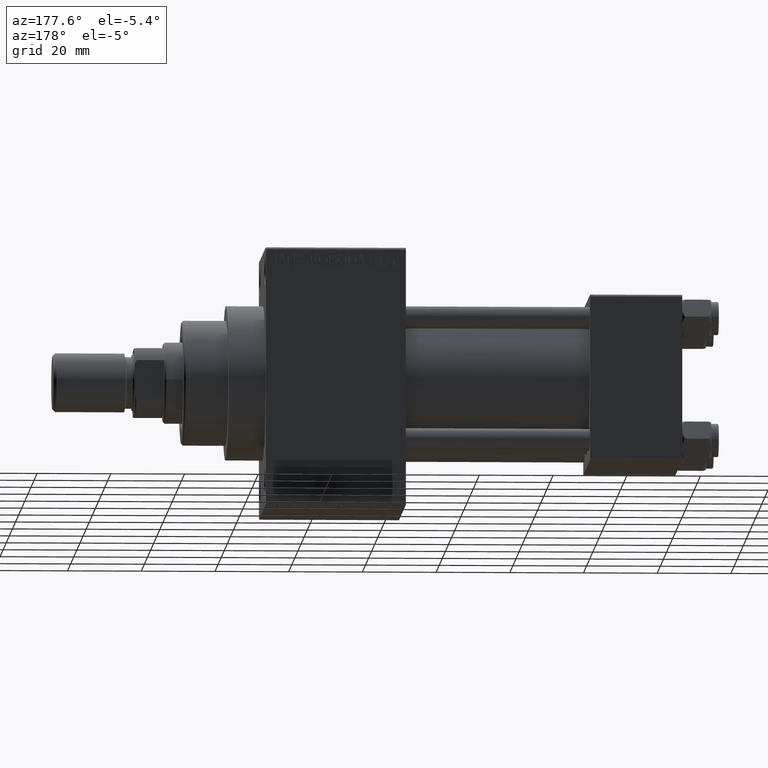
[diagram: clean part render]
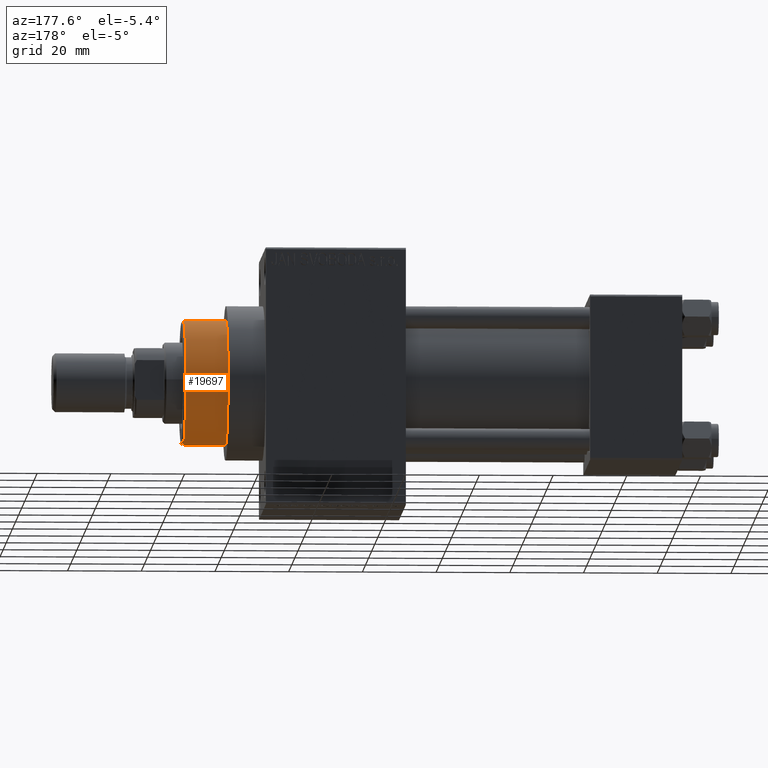
[diagram: same view with one face highlighted and labeled with its STEP entity id]
A machine part, auxiliary view. The second image highlights one B-rep face of the part: STEP entity #19697.
In plain terms, the highlighted cylindrical surface (partial cylindrical patch) has radius 17 mm, axis along (-1, 0, 0).
Its self-contained STEP definition (entity closure, byte-faithful):
#3134 = ORIENTED_EDGE ( 'NONE', *, *, #34963, .F. ) ;
#8482 = CARTESIAN_POINT ( 'NONE',  ( 0.000000000000000000, 0.000000000000000000, 43.25999999999999801 ) ) ;
#9506 = CARTESIAN_POINT ( 'NONE',  ( 17.00000000000000000, 2.081899558550500280E-15, 43.25999999999999801 ) ) ;
#10587 = CYLINDRICAL_SURFACE ( 'NONE', #28420, 17.00000000000000000 ) ;
#13028 = EDGE_CURVE ( 'NONE', #17684, #31371, #18960, .T. ) ;
#14896 = DIRECTION ( 'NONE',  ( 1.000000000000000000, 0.000000000000000000, 0.000000000000000000 ) ) ;
#15227 = CARTESIAN_POINT ( 'NONE',  ( -17.00000000000000000, 0.000000000000000000, 54.76000000000001222 ) ) ;
#17261 = ORIENTED_EDGE ( 'NONE', *, *, #44093, .T. ) ;
#17684 = VERTEX_POINT ( 'NONE', #15227 ) ;
#18055 = CARTESIAN_POINT ( 'NONE',  ( 0.000000000000000000, 0.000000000000000000, 54.76000000000001222 ) ) ;
#18513 = AXIS2_PLACEMENT_3D ( 'NONE', #8482, #29702, #19120 ) ;
#18960 = LINE ( 'NONE', #26642, #44361 ) ;
#19120 = DIRECTION ( 'NONE',  ( 1.000000000000000000, 0.000000000000000000, 0.000000000000000000 ) ) ;
#19697 = ADVANCED_FACE ( 'NONE', ( #42406 ), #10587, .T. ) ;
#22099 = EDGE_CURVE ( 'NONE', #31371, #31867, #37728, .T. ) ;
#22223 = VERTEX_POINT ( 'NONE', #41731 ) ;
#24258 = CIRCLE ( 'NONE', #36579, 17.00000000000000000 ) ;
#24333 = DIRECTION ( 'NONE',  ( -1.000000000000000000, 0.000000000000000000, 0.000000000000000000 ) ) ;
#24844 = ORIENTED_EDGE ( 'NONE', *, *, #22099, .T. ) ;
#25288 = CARTESIAN_POINT ( 'NONE',  ( 0.000000000000000000, 0.000000000000000000, 55.26000000000000512 ) ) ;
#25506 = DIRECTION ( 'NONE',  ( 0.000000000000000000, 0.000000000000000000, -1.000000000000000000 ) ) ;
#26642 = CARTESIAN_POINT ( 'NONE',  ( -17.00000000000000000, 0.000000000000000000, 55.26000000000000512 ) ) ;
#28420 = AXIS2_PLACEMENT_3D ( 'NONE', #25288, #39525, #24333 ) ;
#29702 = DIRECTION ( 'NONE',  ( 0.000000000000000000, 0.000000000000000000, 1.000000000000000000 ) ) ;
#31371 = VERTEX_POINT ( 'NONE', #35029 ) ;
#31867 = VERTEX_POINT ( 'NONE', #9506 ) ;
#33165 = DIRECTION ( 'NONE',  ( -0.000000000000000000, -0.000000000000000000, -1.000000000000000000 ) ) ;
#34963 = EDGE_CURVE ( 'NONE', #22223, #31867, #46818, .T. ) ;
#35029 = CARTESIAN_POINT ( 'NONE',  ( -17.00000000000000000, 0.000000000000000000, 43.25999999999999801 ) ) ;
#35737 = DIRECTION ( 'NONE',  ( -0.000000000000000000, -0.000000000000000000, -1.000000000000000000 ) ) ;
#36579 = AXIS2_PLACEMENT_3D ( 'NONE', #18055, #25506, #14896 ) ;
#37728 = CIRCLE ( 'NONE', #18513, 17.00000000000000000 ) ;
#38010 = EDGE_LOOP ( 'NONE', ( #3134, #17261, #42808, #24844 ) ) ;
#39525 = DIRECTION ( 'NONE',  ( -0.000000000000000000, -0.000000000000000000, -1.000000000000000000 ) ) ;
#41731 = CARTESIAN_POINT ( 'NONE',  ( 17.00000000000000000, 2.081899558550500280E-15, 54.76000000000001222 ) ) ;
#42406 = FACE_OUTER_BOUND ( 'NONE', #38010, .T. ) ;
#42732 = CARTESIAN_POINT ( 'NONE',  ( 17.00000000000000000, 2.081899558550500280E-15, 55.26000000000000512 ) ) ;
#42808 = ORIENTED_EDGE ( 'NONE', *, *, #13028, .T. ) ;
#43327 = VECTOR ( 'NONE', #35737, 1000.000000000000000 ) ;
#44093 = EDGE_CURVE ( 'NONE', #22223, #17684, #24258, .T. ) ;
#44361 = VECTOR ( 'NONE', #33165, 1000.000000000000000 ) ;
#46818 = LINE ( 'NONE', #42732, #43327 ) ;